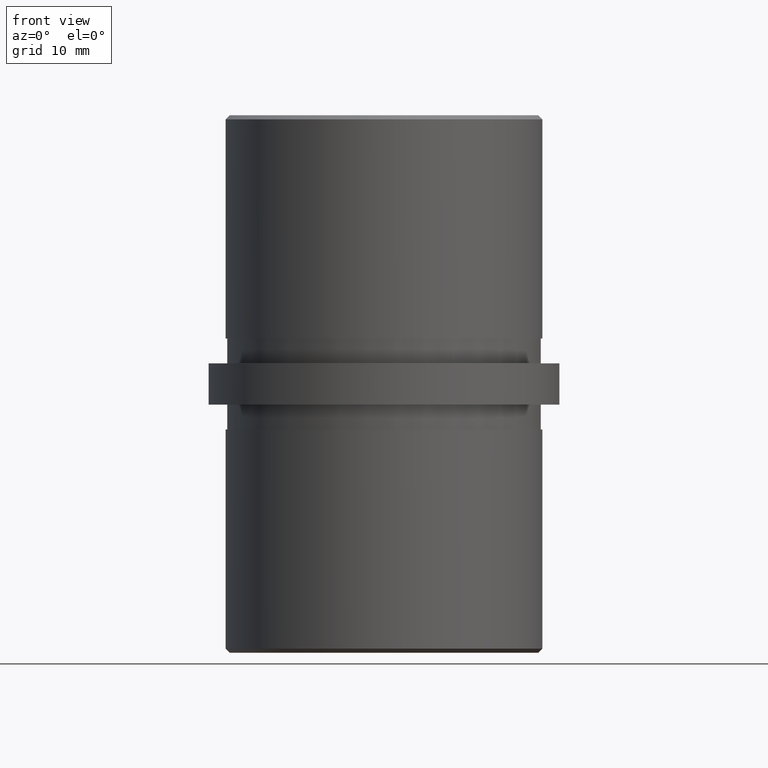
[diagram: clean part render]
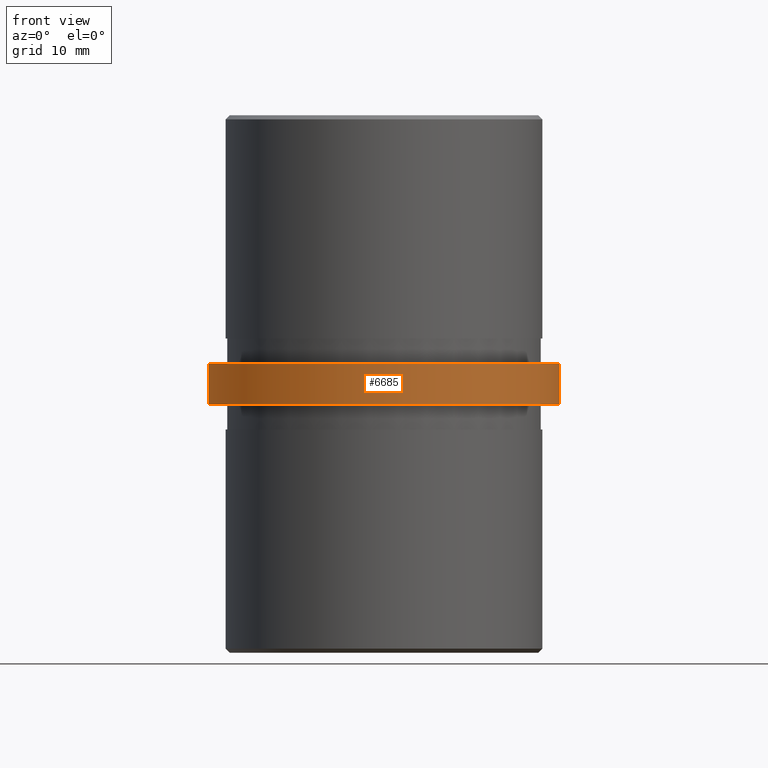
[diagram: same view with one face highlighted and labeled with its STEP entity id]
A machine part, front view. The second image highlights one B-rep face of the part: STEP entity #6685.
In plain terms, the highlighted cylindrical surface (partial cylindrical patch) has radius 21.2 mm, axis along (-0, -0, -1).
Its self-contained STEP definition (entity closure, byte-faithful):
#1772 = DIRECTION ( 'NONE',  ( -0.0000000000000000000, -0.0000000000000000000, -1.000000000000000000 ) ) ;
#1822 = VECTOR ( 'NONE', #8139, 1000.000000000000000 ) ;
#1911 = CARTESIAN_POINT ( 'NONE',  ( -21.19999999999999900, 0.0000000000000000000, 2.500000000000000000 ) ) ;
#2188 = ORIENTED_EDGE ( 'NONE', *, *, #2444, .T. ) ;
#2242 = CARTESIAN_POINT ( 'NONE',  ( 21.19999999999999900, 2.596251214192388800E-015, -2.500000000000000000 ) ) ;
#2444 = EDGE_CURVE ( 'NONE', #14428, #19201, #12514, .T. ) ;
#2565 = EDGE_LOOP ( 'NONE', ( #7582, #15106, #11696, #2188 ) ) ;
#2727 = DIRECTION ( 'NONE',  ( 1.000000000000000000, 0.0000000000000000000, 0.0000000000000000000 ) ) ;
#3692 = DIRECTION ( 'NONE',  ( -0.0000000000000000000, -0.0000000000000000000, -1.000000000000000000 ) ) ;
#3890 = CARTESIAN_POINT ( 'NONE',  ( 0.0000000000000000000, 0.0000000000000000000, 2.500000000000000000 ) ) ;
#4165 = VERTEX_POINT ( 'NONE', #17107 ) ;
#5594 = CARTESIAN_POINT ( 'NONE',  ( 0.0000000000000000000, 0.0000000000000000000, 2.500000000000000000 ) ) ;
#6554 = CARTESIAN_POINT ( 'NONE',  ( 21.19999999999999900, 2.596251214192388800E-015, 2.500000000000000000 ) ) ;
#6685 = ADVANCED_FACE ( 'NONE', ( #18947 ), #10677, .T. ) ;
#6930 = AXIS2_PLACEMENT_3D ( 'NONE', #3890, #3692, #17933 ) ;
#7582 = ORIENTED_EDGE ( 'NONE', *, *, #9793, .F. ) ;
#8139 = DIRECTION ( 'NONE',  ( -0.0000000000000000000, -0.0000000000000000000, -1.000000000000000000 ) ) ;
#9399 = CIRCLE ( 'NONE', #12568, 21.19999999999999900 ) ;
#9760 = CARTESIAN_POINT ( 'NONE',  ( -21.19999999999999900, 0.0000000000000000000, -2.500000000000000000 ) ) ;
#9793 = EDGE_CURVE ( 'NONE', #4165, #19201, #14534, .T. ) ;
#10149 = EDGE_CURVE ( 'NONE', #16879, #14428, #11854, .T. ) ;
#10276 = DIRECTION ( 'NONE',  ( -0.0000000000000000000, -0.0000000000000000000, 1.000000000000000000 ) ) ;
#10677 = CYLINDRICAL_SURFACE ( 'NONE', #6930, 21.19999999999999900 ) ;
#11696 = ORIENTED_EDGE ( 'NONE', *, *, #10149, .T. ) ;
#11838 = DIRECTION ( 'NONE',  ( 1.000000000000000000, 0.0000000000000000000, 0.0000000000000000000 ) ) ;
#11854 = LINE ( 'NONE', #1911, #16015 ) ;
#12514 = CIRCLE ( 'NONE', #15357, 21.19999999999999900 ) ;
#12568 = AXIS2_PLACEMENT_3D ( 'NONE', #5594, #16529, #11838 ) ;
#14428 = VERTEX_POINT ( 'NONE', #9760 ) ;
#14534 = LINE ( 'NONE', #6554, #1822 ) ;
#15106 = ORIENTED_EDGE ( 'NONE', *, *, #16851, .F. ) ;
#15357 = AXIS2_PLACEMENT_3D ( 'NONE', #18151, #10276, #2727 ) ;
#16015 = VECTOR ( 'NONE', #1772, 1000.000000000000000 ) ;
#16529 = DIRECTION ( 'NONE',  ( 0.0000000000000000000, 0.0000000000000000000, 1.000000000000000000 ) ) ;
#16851 = EDGE_CURVE ( 'NONE', #16879, #4165, #9399, .T. ) ;
#16879 = VERTEX_POINT ( 'NONE', #17934 ) ;
#17107 = CARTESIAN_POINT ( 'NONE',  ( 21.19999999999999900, 2.596251214192388800E-015, 2.500000000000000000 ) ) ;
#17933 = DIRECTION ( 'NONE',  ( -1.000000000000000000, 0.0000000000000000000, 0.0000000000000000000 ) ) ;
#17934 = CARTESIAN_POINT ( 'NONE',  ( -21.19999999999999900, 0.0000000000000000000, 2.500000000000000000 ) ) ;
#18151 = CARTESIAN_POINT ( 'NONE',  ( 0.0000000000000000000, 0.0000000000000000000, -2.500000000000000000 ) ) ;
#18947 = FACE_OUTER_BOUND ( 'NONE', #2565, .T. ) ;
#19201 = VERTEX_POINT ( 'NONE', #2242 ) ;